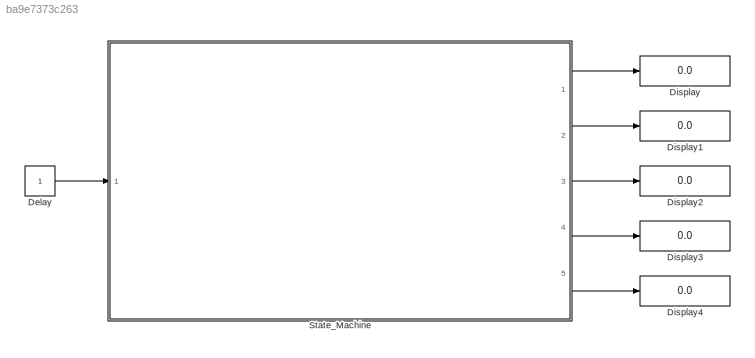
MODEL slx_ba9e7373c263
KIND model
CONFIG AbsTol = auto
CONFIG EnableMultiTasking = off
CONFIG FixedStep = auto
CONFIG MaxStep = auto
CONFIG MinStep = auto
CONFIG RelTol = 1e-3
CONFIG SampleTimeConstraint = Unconstrained
CONFIG SolverName = VariableStepAuto
CONFIG StartTime = 0.0
CONFIG StopTime = 10.0
BLOCK [Constant] Delay
BLOCK [Display] Display
  Decimation = 1
  Ports = [1]
BLOCK [Display] Display1
  Decimation = 1
  Ports = [1]
BLOCK [Display] Display2
  Decimation = 1
  Ports = [1]
BLOCK [Display] Display3
  Decimation = 1
  Ports = [1]
BLOCK [Display] Display4
  Decimation = 1
  Ports = [1]
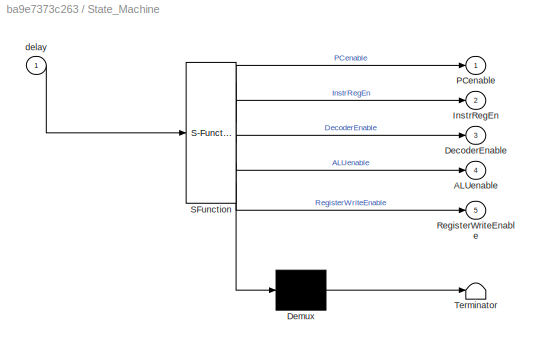
BLOCK [SubSystem] State_Machine
  ErrorFcn = Stateflow.Translate.translate
  PermitHierarchicalResolution = ExplicitOnly
  Ports = [1, 5]
  RequestExecContextInheritance = off
  SFBlockType = Chart
  TreatAsAtomicUnit = on
BLOCK [Demux] State_Machine/ Demux 
  Outputs = 1
  Ports = [1, 1]
BLOCK [S-Function] State_Machine/ SFunction 
  EnableBusSupport = on
  FunctionName = sf_sfun
  PortCounts = [1 6]
  Ports = [1, 6]
  SFcnIsStateOwnerBlock = off
  SFunctionDeploymentMode = off
  Tag = Stateflow S-Function 3
BLOCK [Terminator] State_Machine/ Terminator 
BLOCK [Outport] State_Machine/ALUenable
  Port = 4
BLOCK [Outport] State_Machine/DecoderEnable
  Port = 3
BLOCK [Outport] State_Machine/InstrRegEn
  Port = 2
BLOCK [Outport] State_Machine/PCenable
BLOCK [Outport] State_Machine/RegisterWriteEnable
  Port = 5
BLOCK [Inport] State_Machine/delay
LINE Delay:1 -> State_Machine:1
LINE State_Machine:1 -> Display:1
LINE State_Machine:2 -> Display1:1
LINE State_Machine:3 -> Display2:1
LINE State_Machine:4 -> Display3:1
LINE State_Machine:5 -> Display4:1
CHART State_Machine states=5 transitions=6
  STATE_LABEL 'start\n\nPCenable = 0; InstrRegEn = 0; DecoderEnable = 0; ALUenable = 0; RegisterWriteEnable = 0;'
  STATE_LABEL 'Fetch\n\nPCenable = 1; InstrRegEn = 1; DecoderEnable = 0; ALUenable = 0; RegisterWriteEnable = 0;'
  STATE_LABEL 'Decode\n\nPCenable = 0; InstrRegEn = 0; DecoderEnable = 1; ALUenable = 0; RegisterWriteEnable = 0;'
  STATE_LABEL 'Execute\n\nPCenable = 0; InstrRegEn = 0; DecoderEnable = 0; ALUenable = 1; RegisterWriteEnable = 0;'
  STATE_LABEL 'Writeback\n\nPCenable = 0; InstrRegEn = 0; DecoderEnable = 0; ALUenable = 0; RegisterWriteEnable = 1;'
CHART  states=0 transitions=0
